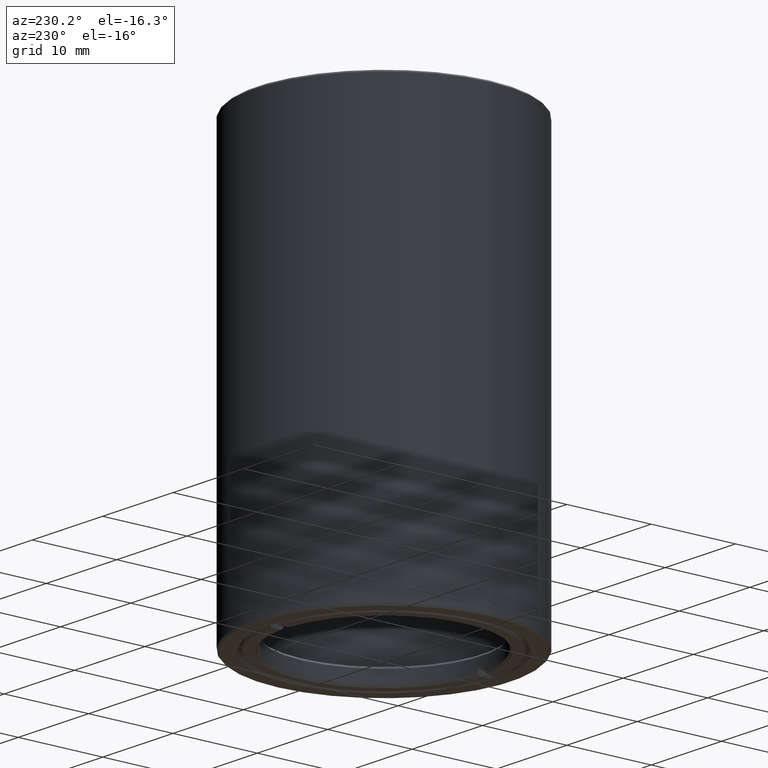
[diagram: clean part render]
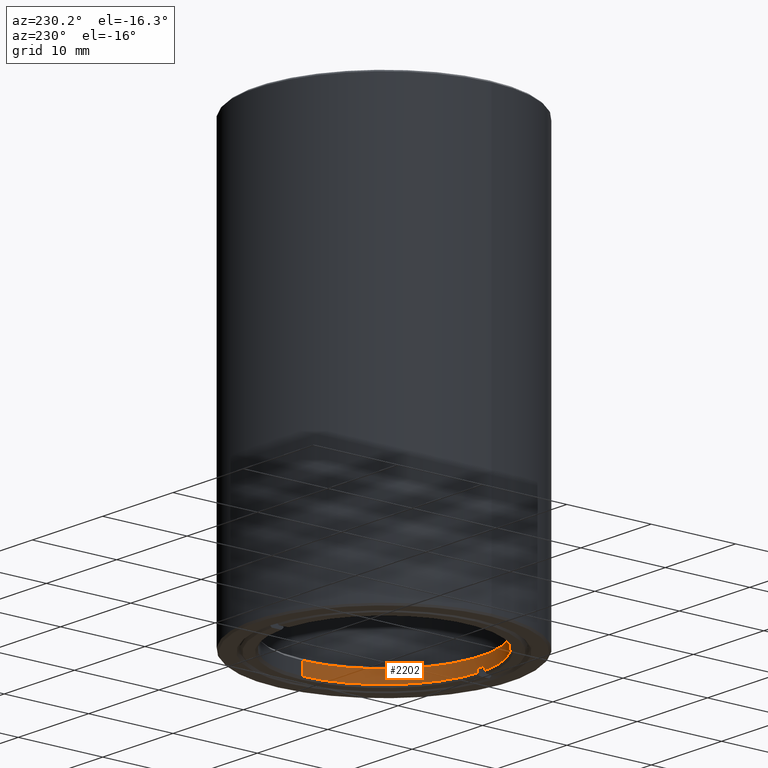
[diagram: same view with one face highlighted and labeled with its STEP entity id]
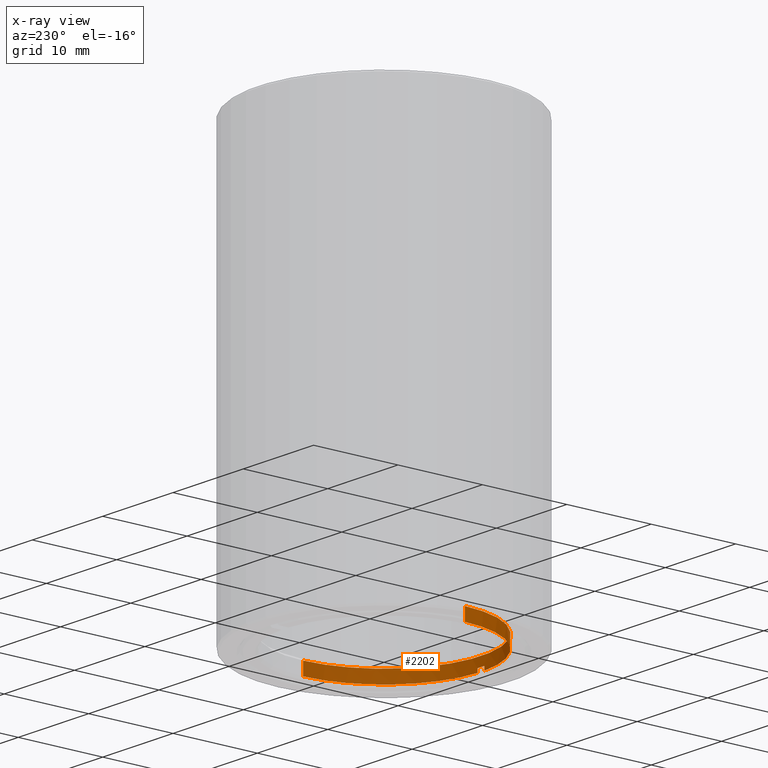
[diagram: x-ray of the same camera — body ghosted, the highlighted face saturated]
A machine part, auxiliary view. The second image highlights one B-rep face of the part: STEP entity #2202.
The next image is the same camera in x-ray: the body ghosted, the highlighted face saturated — about 0% of this face is hidden behind the body in this view.
In plain terms, the highlighted cylindrical surface (partial cylindrical patch) has radius 11.5045 mm, axis along (-0, 0, 1).
Its self-contained STEP definition (entity closure, byte-faithful):
#1 = CARTESIAN_POINT ( 'NONE',  ( -0.4999999999999936162, -11.49362955075548243, -44.19999999999999574 ) ) ;
#29 = CARTESIAN_POINT ( 'NONE',  ( 0.5000000000000046629, -11.49362955075548243, -44.19999999999998863 ) ) ;
#40 = LINE ( 'NONE', #172, #282 ) ;
#49 = CARTESIAN_POINT ( 'NONE',  ( 0.5000000000000045519, -11.49362955075548243, -43.75000000000000000 ) ) ;
#55 = FACE_OUTER_BOUND ( 'NONE', #934, .T. ) ;
#82 = AXIS2_PLACEMENT_3D ( 'NONE', #1375, #2382, #413 ) ;
#110 = DIRECTION ( 'NONE',  ( -1.224646799147355179E-16, 7.395570986447003192E-32, 1.000000000000000000 ) ) ;
#172 = CARTESIAN_POINT ( 'NONE',  ( -0.4999999999999936162, -11.49362955075548243, -44.44999999999998863 ) ) ;
#247 = CARTESIAN_POINT ( 'NONE',  ( 0.5000000000000046629, -11.49362955075548243, -44.44999999999998863 ) ) ;
#270 = DIRECTION ( 'NONE',  ( 1.224646799147355179E-16, -7.395570986447003192E-32, -1.000000000000000000 ) ) ;
#282 = VECTOR ( 'NONE', #449, 1000.000000000000000 ) ;
#287 = LINE ( 'NONE', #959, #1804 ) ;
#337 = VERTEX_POINT ( 'NONE', #29 ) ;
#363 = DIRECTION ( 'NONE',  ( -1.224646799147355179E-16, 7.395570986447003192E-32, 1.000000000000000000 ) ) ;
#376 = DIRECTION ( 'NONE',  ( -1.224646799147355179E-16, 7.395570986447003192E-32, 1.000000000000000000 ) ) ;
#404 = AXIS2_PLACEMENT_3D ( 'NONE', #1513, #2465, #1320 ) ;
#413 = DIRECTION ( 'NONE',  ( -1.000000000000000000, -1.224646799147353207E-16, 0.000000000000000000 ) ) ;
#430 = VERTEX_POINT ( 'NONE', #2136 ) ;
#447 = ORIENTED_EDGE ( 'NONE', *, *, #1509, .T. ) ;
#449 = DIRECTION ( 'NONE',  ( -1.224646799147355179E-16, 7.395570986447003192E-32, 1.000000000000000000 ) ) ;
#479 = VERTEX_POINT ( 'NONE', #49 ) ;
#481 = EDGE_CURVE ( 'NONE', #1167, #337, #562, .T. ) ;
#535 = EDGE_CURVE ( 'NONE', #1472, #745, #1062, .T. ) ;
#559 = DIRECTION ( 'NONE',  ( 1.000000000000000000, 1.224646799147353207E-16, 0.000000000000000000 ) ) ;
#562 = CIRCLE ( 'NONE', #1115, 11.50449999999998951 ) ;
#745 = VERTEX_POINT ( 'NONE', #954 ) ;
#748 = VECTOR ( 'NONE', #110, 1000.000000000000000 ) ;
#760 = EDGE_CURVE ( 'NONE', #479, #1422, #1455, .T. ) ;
#854 = ORIENTED_EDGE ( 'NONE', *, *, #535, .T. ) ;
#909 = CIRCLE ( 'NONE', #2027, 11.50449999999998951 ) ;
#934 = EDGE_LOOP ( 'NONE', ( #1358, #1476, #2035, #2063, #1386, #854, #2160, #447 ) ) ;
#954 = CARTESIAN_POINT ( 'NONE',  ( -11.50449999999999307, -1.408894910079072071E-15, -44.19999999999999574 ) ) ;
#959 = CARTESIAN_POINT ( 'NONE',  ( -11.50449999999998418, -1.408894910079071085E-15, -44.44999999999998863 ) ) ;
#1036 = CYLINDRICAL_SURFACE ( 'NONE', #82, 11.50449999999998951 ) ;
#1062 = CIRCLE ( 'NONE', #1334, 11.50449999999998951 ) ;
#1115 = AXIS2_PLACEMENT_3D ( 'NONE', #1421, #270, #2207 ) ;
#1158 = EDGE_CURVE ( 'NONE', #479, #337, #1615, .T. ) ;
#1167 = VERTEX_POINT ( 'NONE', #1612 ) ;
#1230 = DIRECTION ( 'NONE',  ( 1.224646799147355179E-16, -7.395570986447003192E-32, -1.000000000000000000 ) ) ;
#1231 = VERTEX_POINT ( 'NONE', #1410 ) ;
#1249 = CARTESIAN_POINT ( 'NONE',  ( -0.4999999999999937272, -11.49362955075548243, -43.75000000000000000 ) ) ;
#1280 = CARTESIAN_POINT ( 'NONE',  ( 11.50449999999999307, 4.163102493739092807E-30, -44.44999999999998863 ) ) ;
#1320 = DIRECTION ( 'NONE',  ( 1.000000000000000000, 1.224646799147353207E-16, 0.000000000000000000 ) ) ;
#1334 = AXIS2_PLACEMENT_3D ( 'NONE', #1843, #1467, #2246 ) ;
#1358 = ORIENTED_EDGE ( 'NONE', *, *, #1767, .F. ) ;
#1375 = CARTESIAN_POINT ( 'NONE',  ( 5.443555022209984120E-15, 1.925929944387236291E-31, -44.44999999999998863 ) ) ;
#1386 = ORIENTED_EDGE ( 'NONE', *, *, #2388, .F. ) ;
#1410 = CARTESIAN_POINT ( 'NONE',  ( -11.50449999999999307, -1.424202995068414161E-15, -42.69999999999999574 ) ) ;
#1421 = CARTESIAN_POINT ( 'NONE',  ( 5.412938852231302699E-15, -5.777789833161705808E-31, -44.19999999999999574 ) ) ;
#1422 = VERTEX_POINT ( 'NONE', #1249 ) ;
#1455 = CIRCLE ( 'NONE', #404, 11.50449999999998951 ) ;
#1467 = DIRECTION ( 'NONE',  ( 1.224646799147355179E-16, -7.395570986447003192E-32, -1.000000000000000000 ) ) ;
#1472 = VERTEX_POINT ( 'NONE', #1 ) ;
#1476 = ORIENTED_EDGE ( 'NONE', *, *, #481, .T. ) ;
#1509 = EDGE_CURVE ( 'NONE', #1231, #430, #909, .T. ) ;
#1513 = CARTESIAN_POINT ( 'NONE',  ( 5.357829746269669831E-15, -4.814824860968089633E-31, -43.75000000000000000 ) ) ;
#1549 = CARTESIAN_POINT ( 'NONE',  ( 5.229241832359198399E-15, 9.629649721936188023E-32, -42.69999999999999574 ) ) ;
#1612 = CARTESIAN_POINT ( 'NONE',  ( 11.50450000000000372, 1.424202995068410809E-15, -44.19999999999999574 ) ) ;
#1615 = LINE ( 'NONE', #247, #1908 ) ;
#1767 = EDGE_CURVE ( 'NONE', #1167, #430, #2074, .T. ) ;
#1804 = VECTOR ( 'NONE', #376, 1000.000000000000000 ) ;
#1843 = CARTESIAN_POINT ( 'NONE',  ( 5.412938852231302699E-15, -5.777789833161705808E-31, -44.19999999999999574 ) ) ;
#1901 = EDGE_CURVE ( 'NONE', #745, #1231, #287, .T. ) ;
#1908 = VECTOR ( 'NONE', #1230, 1000.000000000000000 ) ;
#2027 = AXIS2_PLACEMENT_3D ( 'NONE', #1549, #363, #559 ) ;
#2035 = ORIENTED_EDGE ( 'NONE', *, *, #1158, .F. ) ;
#2063 = ORIENTED_EDGE ( 'NONE', *, *, #760, .T. ) ;
#2074 = LINE ( 'NONE', #1280, #748 ) ;
#2136 = CARTESIAN_POINT ( 'NONE',  ( 11.50450000000000372, 4.196998860760310960E-30, -42.69999999999999574 ) ) ;
#2160 = ORIENTED_EDGE ( 'NONE', *, *, #1901, .T. ) ;
#2202 = ADVANCED_FACE ( 'NONE', ( #55 ), #1036, .F. ) ;
#2207 = DIRECTION ( 'NONE',  ( 1.000000000000000000, 1.224646799147353207E-16, 0.000000000000000000 ) ) ;
#2246 = DIRECTION ( 'NONE',  ( 1.000000000000000000, 1.224646799147353207E-16, 0.000000000000000000 ) ) ;
#2382 = DIRECTION ( 'NONE',  ( -1.224646799147355179E-16, 7.395570986447003192E-32, 1.000000000000000000 ) ) ;
#2388 = EDGE_CURVE ( 'NONE', #1472, #1422, #40, .T. ) ;
#2465 = DIRECTION ( 'NONE',  ( 1.224646799147355179E-16, -7.395570986447003192E-32, -1.000000000000000000 ) ) ;